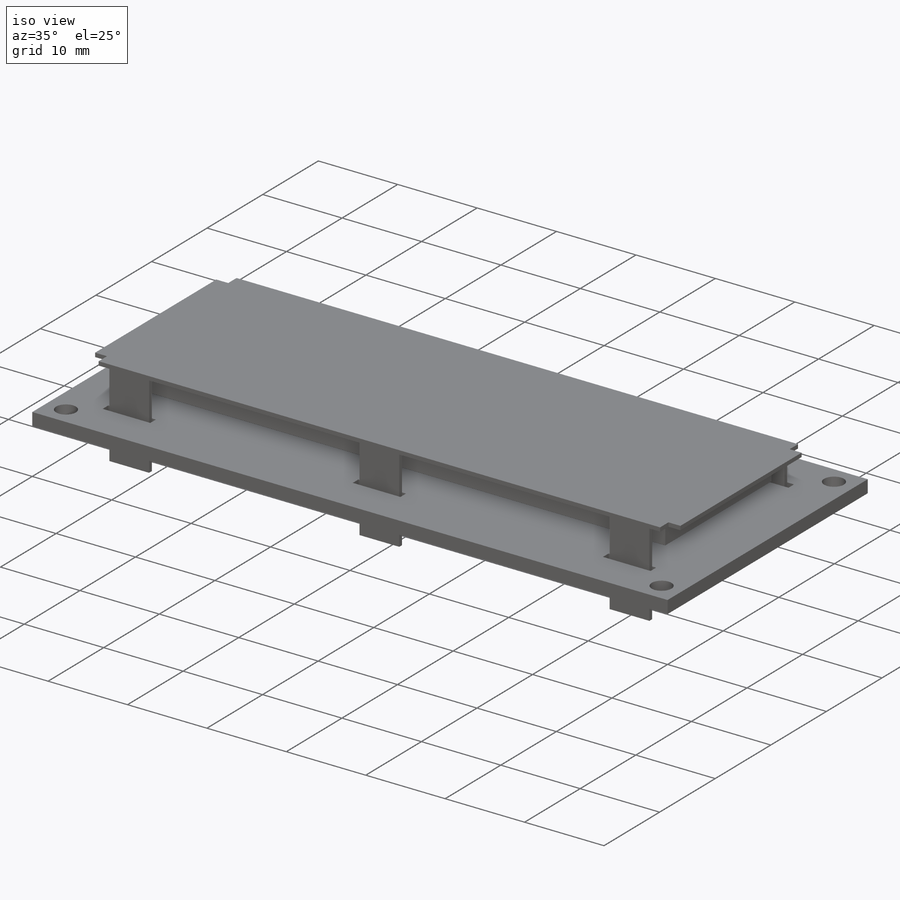
[diagram: iso view]
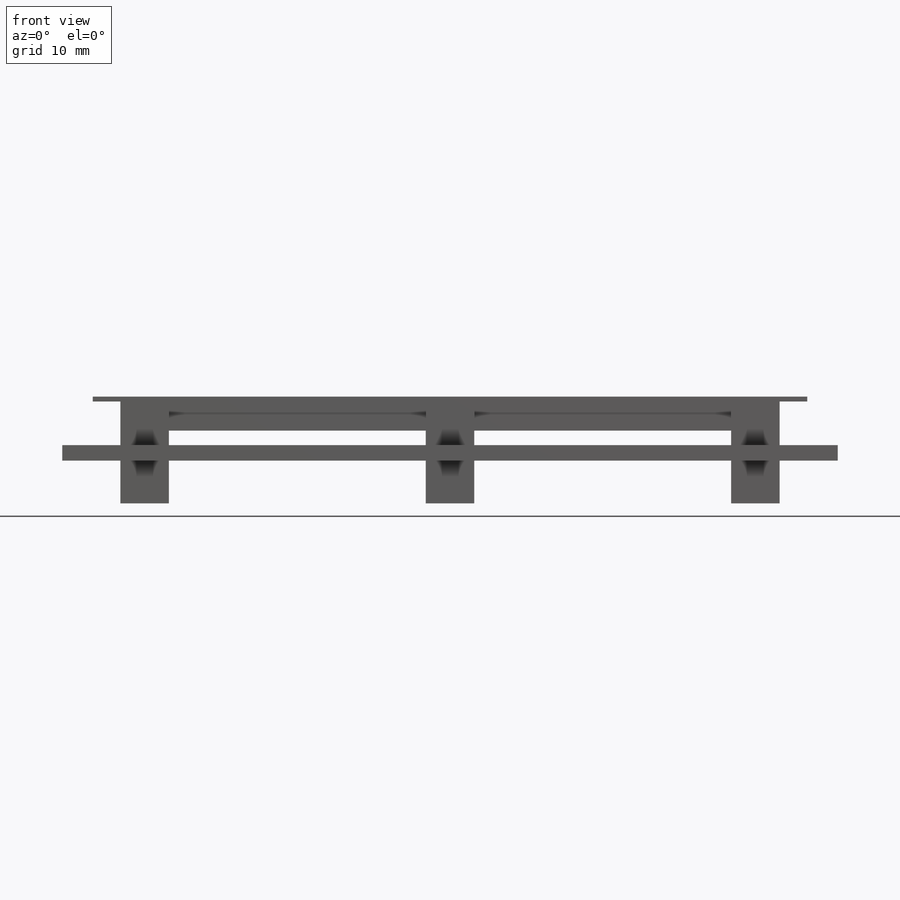
[diagram: front view]
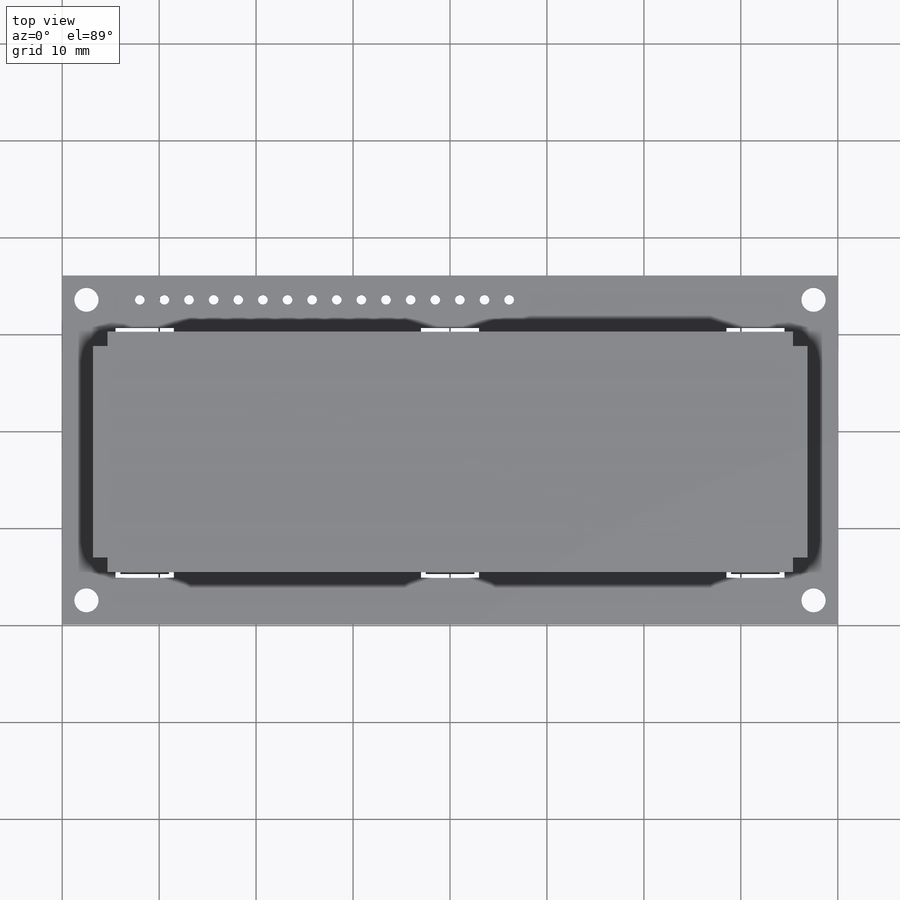
[diagram: top view]
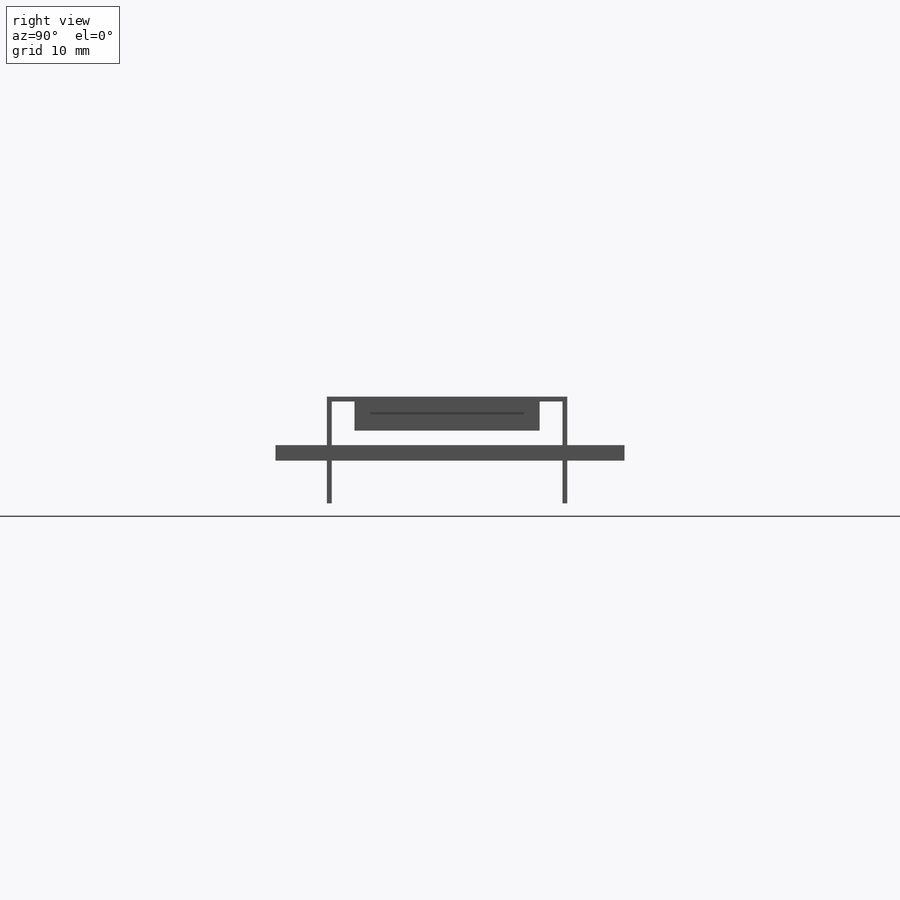
[diagram: right view]
SOLIDWORKS PART (.sldprt)
format: sldprt  version: not decoded by parser v0  size: 393,216 bytes
history: native  units: mm
features: sketch x9, extrude x4, plane x3, hole x2, mirror x2, material x1, cut_extrude x1, pattern_linear x1 (+15 scaffold rows collapsed; 2 parser-record rows omitted)
feature tree (40):
  scaffold x15  (default folders/planes/origin — collapsed)
  material  "Material <nicht festgelegt>"
  plane  "Ebene vorne"
  plane  "Ebene oben"
  plane  "Ebene rechts"
  parser-record x2  (decoder bookkeeping rows leaked as tree rows — omitted from the tree; the rows remain in map.json)
  sketch  "Skizze1"  dims[D1=36.0mm D2=1.6mm]
  extrude  "Linear austragen1"  Depth=40mm
  hole  "Ø2.5 (2.5) Durchmesser Bohrung1"  Diameter=2.5mm Depth=1.6mm
  sketch  "3D-Skizze1"  dims[D1=2.5mm D2=2.5mm D3=2.5mm D4=2.5mm]
  sketch  "Skizze3"  dims[hole-wizard template sketch: 60 standard entries collapsed; hole parameters kept: c18.Bohrungstiefe=1.6mm]
  sketch  "Skizze7"  dims[D1=1.0mm D2=5.4mm D3=3.0mm D4=6.0mm D5=5.5mm D6=25.8mm]
  cut_extrude  "Linear austragen4"  [1 undecoded]
  mirror  "Spiegeln1"
  sketch  "Skizze5"  dims[c1.D1=24.8mm c1.D2=36.85mm c1.D3=1.5mm c1.D4=5.6mm c2.D2=3.15mm c2.D4=5.9mm]
  extrude  "Linear austragen2"  Depth=0.5mm
  mirror  "Spiegeln8"
  sketch  "Skizze6"  dims[c1.D1=1.5mm c1.D2=5.0mm c1.D3=0.5mm c2.D1=0.5mm]
  extrude  "Linear austragen3"  Depth=11mm
  sketch  "Skizze8"
  extrude  "Linear austragen5"  Depth=3mm
  hole  "Ø1.0 (1) Durchmesser Bohrung1"  Diameter=1mm Depth=1.6mm
  sketch  "3D-Skizze2"  dims[D1=8.0mm D2=2.5mm]
  sketch  "Skizze9"  dims[hole-wizard template sketch: 46 standard entries collapsed; hole parameters kept: c15.Bohrerdurchmesser=1.0mm c15.Bohrungstiefe=1.6mm c15.D3=~14.816244mm c15.Spitzenwinkel=118.0deg]
  pattern_linear  "Lineares Muster1"  Count1=16 Count2=1 Spacing1=2.54mm Spacing2=10mm
decode coverage: 15 of 19 modeling features carry decoded parameters
note: ~ marks probable driven/reference dimensions
note: 1 parameter value undecoded
note: suppression state not decoded; provenance and decode notes live in map.json
